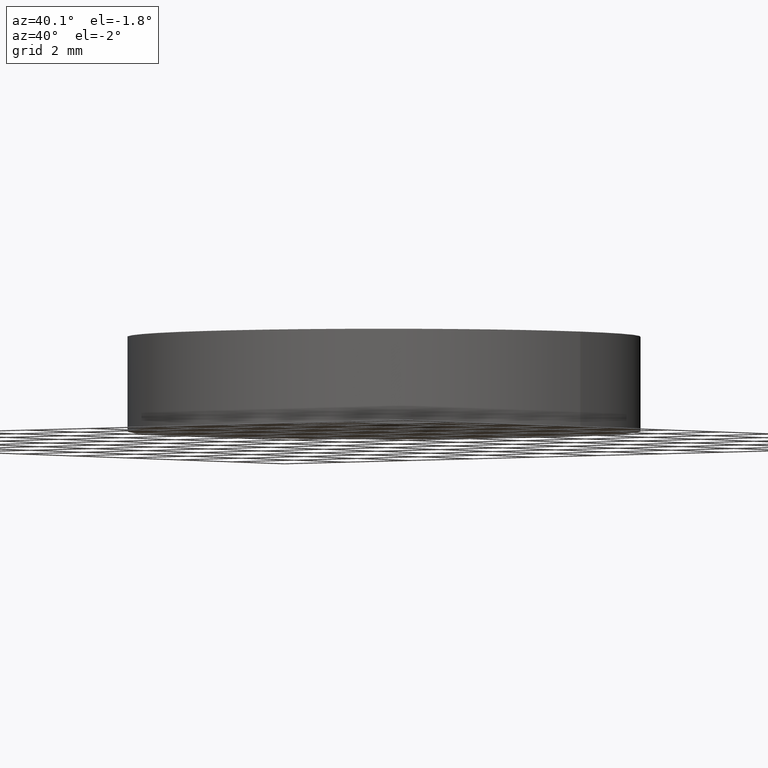
[diagram: clean part render]
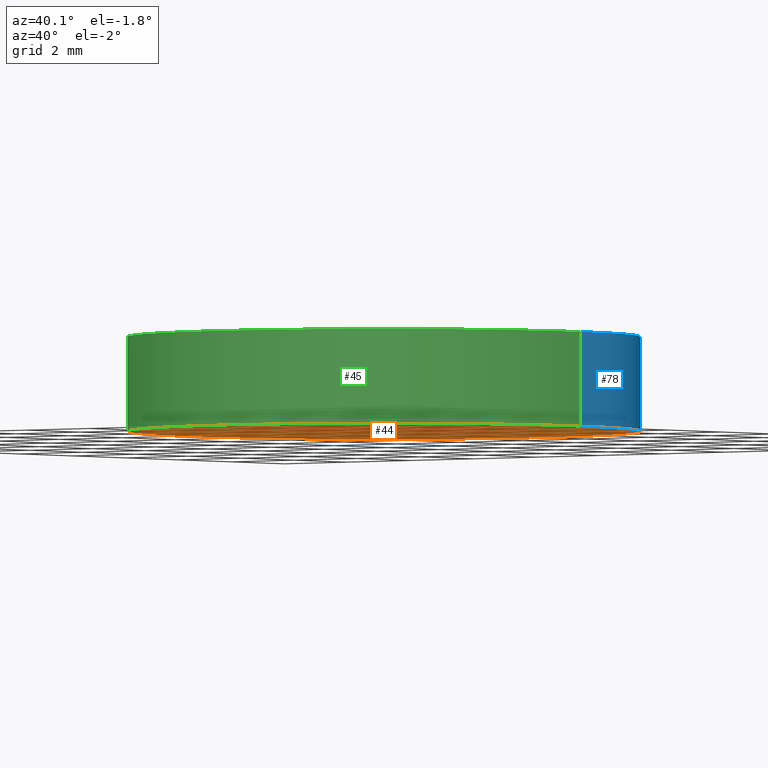
[diagram: same view with three faces highlighted in distinct colors, each labeled with its STEP entity id]
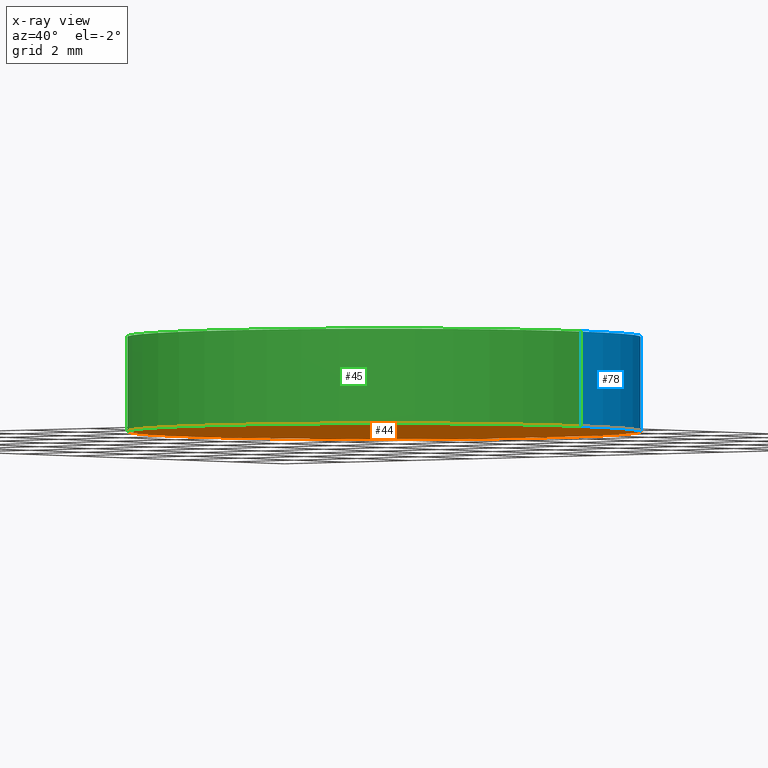
[diagram: x-ray of the same camera — body ghosted, the three highlighted faces saturated]
A machine part, auxiliary view with three faces highlighted in distinct colors.
The next image is the same camera in x-ray (body ghosted, the three faces saturated) — at least one of them is partly hidden behind the body in this view.
Their STEP definitions:

[orange] entity #44 — the highlighted planar face has unit normal (0, 0, 1).
#6 = DIRECTION ( 'NONE',  ( 1.000000000000000000, 0.0000000000000000000, 0.0000000000000000000 ) ) ;
#17 = CARTESIAN_POINT ( 'NONE',  ( 50.62396788794254100, 30.78162091726329700, 0.0000000000000000000 ) ) ;
#20 = EDGE_CURVE ( 'NONE', #93, #112, #40, .T. ) ;
#25 = PLANE ( 'NONE',  #28 ) ;
#26 = CARTESIAN_POINT ( 'NONE',  ( 44.37396788794254800, 30.78162091726329700, 0.0000000000000000000 ) ) ;
#28 = AXIS2_PLACEMENT_3D ( 'NONE', #127, #136, #47 ) ;
#32 = AXIS2_PLACEMENT_3D ( 'NONE', #17, #61, #6 ) ;
#38 = AXIS2_PLACEMENT_3D ( 'NONE', #50, #46, #123 ) ;
#40 = CIRCLE ( 'NONE', #32, 6.249999999999998200 ) ;
#44 = ADVANCED_FACE ( 'NONE', ( #135 ), #25, .F. ) ;
#46 = DIRECTION ( 'NONE',  ( 0.0000000000000000000, 0.0000000000000000000, 1.000000000000000000 ) ) ;
#47 = DIRECTION ( 'NONE',  ( 1.000000000000000000, 0.0000000000000000000, -0.0000000000000000000 ) ) ;
#50 = CARTESIAN_POINT ( 'NONE',  ( 50.62396788794254100, 30.78162091726329700, 0.0000000000000000000 ) ) ;
#57 = EDGE_CURVE ( 'NONE', #112, #93, #67, .T. ) ;
#61 = DIRECTION ( 'NONE',  ( 0.0000000000000000000, 0.0000000000000000000, 1.000000000000000000 ) ) ;
#67 = CIRCLE ( 'NONE', #38, 6.249999999999998200 ) ;
#82 = ORIENTED_EDGE ( 'NONE', *, *, #20, .F. ) ;
#93 = VERTEX_POINT ( 'NONE', #26 ) ;
#106 = EDGE_LOOP ( 'NONE', ( #82, #114 ) ) ;
#112 = VERTEX_POINT ( 'NONE', #116 ) ;
#114 = ORIENTED_EDGE ( 'NONE', *, *, #57, .F. ) ;
#116 = CARTESIAN_POINT ( 'NONE',  ( 56.87396788794254100, 30.78162091726329700, 0.0000000000000000000 ) ) ;
#123 = DIRECTION ( 'NONE',  ( 1.000000000000000000, 0.0000000000000000000, 0.0000000000000000000 ) ) ;
#127 = CARTESIAN_POINT ( 'NONE',  ( 50.62396788794254100, 30.78162091726329700, 0.0000000000000000000 ) ) ;
#135 = FACE_OUTER_BOUND ( 'NONE', #106, .T. ) ;
#136 = DIRECTION ( 'NONE',  ( 0.0000000000000000000, 0.0000000000000000000, 1.000000000000000000 ) ) ;

[blue] entity #78 — the highlighted cylindrical surface (partial cylindrical patch) has radius 6.25 mm, axis along (-0, -0, -1).
#2 = LINE ( 'NONE', #33, #39 ) ;
#10 = LINE ( 'NONE', #129, #100 ) ;
#11 = FACE_OUTER_BOUND ( 'NONE', #96, .T. ) ;
#22 = ORIENTED_EDGE ( 'NONE', *, *, #24, .F. ) ;
#23 = ORIENTED_EDGE ( 'NONE', *, *, #57, .T. ) ;
#24 = EDGE_CURVE ( 'NONE', #54, #93, #2, .T. ) ;
#26 = CARTESIAN_POINT ( 'NONE',  ( 44.37396788794254800, 30.78162091726329700, 0.0000000000000000000 ) ) ;
#33 = CARTESIAN_POINT ( 'NONE',  ( 44.37396788794254800, 30.78162091726329700, 2.299999999999999800 ) ) ;
#38 = AXIS2_PLACEMENT_3D ( 'NONE', #50, #46, #123 ) ;
#39 = VECTOR ( 'NONE', #98, 1000.000000000000000 ) ;
#42 = CIRCLE ( 'NONE', #130, 6.249999999999998200 ) ;
#46 = DIRECTION ( 'NONE',  ( 0.0000000000000000000, 0.0000000000000000000, 1.000000000000000000 ) ) ;
#50 = CARTESIAN_POINT ( 'NONE',  ( 50.62396788794254100, 30.78162091726329700, 0.0000000000000000000 ) ) ;
#51 = DIRECTION ( 'NONE',  ( -0.0000000000000000000, -0.0000000000000000000, -1.000000000000000000 ) ) ;
#54 = VERTEX_POINT ( 'NONE', #65 ) ;
#55 = CARTESIAN_POINT ( 'NONE',  ( 50.62396788794254100, 30.78162091726329700, 2.299999999999999800 ) ) ;
#57 = EDGE_CURVE ( 'NONE', #112, #93, #67, .T. ) ;
#63 = DIRECTION ( 'NONE',  ( -1.000000000000000000, 0.0000000000000000000, 0.0000000000000000000 ) ) ;
#65 = CARTESIAN_POINT ( 'NONE',  ( 44.37396788794254800, 30.78162091726329700, 2.299999999999999800 ) ) ;
#67 = CIRCLE ( 'NONE', #38, 6.249999999999998200 ) ;
#70 = DIRECTION ( 'NONE',  ( 1.000000000000000000, 0.0000000000000000000, 0.0000000000000000000 ) ) ;
#78 = ADVANCED_FACE ( 'NONE', ( #11 ), #86, .T. ) ;
#86 = CYLINDRICAL_SURFACE ( 'NONE', #105, 6.249999999999998200 ) ;
#89 = VERTEX_POINT ( 'NONE', #126 ) ;
#93 = VERTEX_POINT ( 'NONE', #26 ) ;
#96 = EDGE_LOOP ( 'NONE', ( #104, #108, #23, #22 ) ) ;
#98 = DIRECTION ( 'NONE',  ( -0.0000000000000000000, -0.0000000000000000000, -1.000000000000000000 ) ) ;
#100 = VECTOR ( 'NONE', #51, 1000.000000000000000 ) ;
#102 = DIRECTION ( 'NONE',  ( 0.0000000000000000000, 0.0000000000000000000, 1.000000000000000000 ) ) ;
#104 = ORIENTED_EDGE ( 'NONE', *, *, #138, .F. ) ;
#105 = AXIS2_PLACEMENT_3D ( 'NONE', #107, #125, #63 ) ;
#107 = CARTESIAN_POINT ( 'NONE',  ( 50.62396788794254100, 30.78162091726329700, 2.299999999999999800 ) ) ;
#108 = ORIENTED_EDGE ( 'NONE', *, *, #113, .T. ) ;
#112 = VERTEX_POINT ( 'NONE', #116 ) ;
#113 = EDGE_CURVE ( 'NONE', #89, #112, #10, .T. ) ;
#116 = CARTESIAN_POINT ( 'NONE',  ( 56.87396788794254100, 30.78162091726329700, 0.0000000000000000000 ) ) ;
#123 = DIRECTION ( 'NONE',  ( 1.000000000000000000, 0.0000000000000000000, 0.0000000000000000000 ) ) ;
#125 = DIRECTION ( 'NONE',  ( -0.0000000000000000000, -0.0000000000000000000, -1.000000000000000000 ) ) ;
#126 = CARTESIAN_POINT ( 'NONE',  ( 56.87396788794254100, 30.78162091726329700, 2.299999999999999800 ) ) ;
#129 = CARTESIAN_POINT ( 'NONE',  ( 56.87396788794254100, 30.78162091726329700, 2.299999999999999800 ) ) ;
#130 = AXIS2_PLACEMENT_3D ( 'NONE', #55, #102, #70 ) ;
#138 = EDGE_CURVE ( 'NONE', #89, #54, #42, .T. ) ;

[green] entity #45 — the highlighted cylindrical surface (partial cylindrical patch) has radius 6.25 mm, axis along (-0, -0, -1).
#2 = LINE ( 'NONE', #33, #39 ) ;
#4 = CIRCLE ( 'NONE', #9, 6.249999999999998200 ) ;
#6 = DIRECTION ( 'NONE',  ( 1.000000000000000000, 0.0000000000000000000, 0.0000000000000000000 ) ) ;
#9 = AXIS2_PLACEMENT_3D ( 'NONE', #124, #99, #48 ) ;
#10 = LINE ( 'NONE', #129, #100 ) ;
#17 = CARTESIAN_POINT ( 'NONE',  ( 50.62396788794254100, 30.78162091726329700, 0.0000000000000000000 ) ) ;
#19 = ORIENTED_EDGE ( 'NONE', *, *, #113, .F. ) ;
#20 = EDGE_CURVE ( 'NONE', #93, #112, #40, .T. ) ;
#24 = EDGE_CURVE ( 'NONE', #54, #93, #2, .T. ) ;
#26 = CARTESIAN_POINT ( 'NONE',  ( 44.37396788794254800, 30.78162091726329700, 0.0000000000000000000 ) ) ;
#30 = ORIENTED_EDGE ( 'NONE', *, *, #24, .T. ) ;
#31 = AXIS2_PLACEMENT_3D ( 'NONE', #117, #87, #80 ) ;
#32 = AXIS2_PLACEMENT_3D ( 'NONE', #17, #61, #6 ) ;
#33 = CARTESIAN_POINT ( 'NONE',  ( 44.37396788794254800, 30.78162091726329700, 2.299999999999999800 ) ) ;
#34 = FACE_OUTER_BOUND ( 'NONE', #122, .T. ) ;
#39 = VECTOR ( 'NONE', #98, 1000.000000000000000 ) ;
#40 = CIRCLE ( 'NONE', #32, 6.249999999999998200 ) ;
#45 = ADVANCED_FACE ( 'NONE', ( #34 ), #111, .T. ) ;
#48 = DIRECTION ( 'NONE',  ( 1.000000000000000000, 0.0000000000000000000, 0.0000000000000000000 ) ) ;
#51 = DIRECTION ( 'NONE',  ( -0.0000000000000000000, -0.0000000000000000000, -1.000000000000000000 ) ) ;
#54 = VERTEX_POINT ( 'NONE', #65 ) ;
#61 = DIRECTION ( 'NONE',  ( 0.0000000000000000000, 0.0000000000000000000, 1.000000000000000000 ) ) ;
#65 = CARTESIAN_POINT ( 'NONE',  ( 44.37396788794254800, 30.78162091726329700, 2.299999999999999800 ) ) ;
#72 = EDGE_CURVE ( 'NONE', #54, #89, #4, .T. ) ;
#79 = ORIENTED_EDGE ( 'NONE', *, *, #72, .F. ) ;
#80 = DIRECTION ( 'NONE',  ( -1.000000000000000000, 0.0000000000000000000, 0.0000000000000000000 ) ) ;
#84 = ORIENTED_EDGE ( 'NONE', *, *, #20, .T. ) ;
#87 = DIRECTION ( 'NONE',  ( -0.0000000000000000000, -0.0000000000000000000, -1.000000000000000000 ) ) ;
#89 = VERTEX_POINT ( 'NONE', #126 ) ;
#93 = VERTEX_POINT ( 'NONE', #26 ) ;
#98 = DIRECTION ( 'NONE',  ( -0.0000000000000000000, -0.0000000000000000000, -1.000000000000000000 ) ) ;
#99 = DIRECTION ( 'NONE',  ( 0.0000000000000000000, 0.0000000000000000000, 1.000000000000000000 ) ) ;
#100 = VECTOR ( 'NONE', #51, 1000.000000000000000 ) ;
#111 = CYLINDRICAL_SURFACE ( 'NONE', #31, 6.249999999999998200 ) ;
#112 = VERTEX_POINT ( 'NONE', #116 ) ;
#113 = EDGE_CURVE ( 'NONE', #89, #112, #10, .T. ) ;
#116 = CARTESIAN_POINT ( 'NONE',  ( 56.87396788794254100, 30.78162091726329700, 0.0000000000000000000 ) ) ;
#117 = CARTESIAN_POINT ( 'NONE',  ( 50.62396788794254100, 30.78162091726329700, 2.299999999999999800 ) ) ;
#122 = EDGE_LOOP ( 'NONE', ( #19, #79, #30, #84 ) ) ;
#124 = CARTESIAN_POINT ( 'NONE',  ( 50.62396788794254100, 30.78162091726329700, 2.299999999999999800 ) ) ;
#126 = CARTESIAN_POINT ( 'NONE',  ( 56.87396788794254100, 30.78162091726329700, 2.299999999999999800 ) ) ;
#129 = CARTESIAN_POINT ( 'NONE',  ( 56.87396788794254100, 30.78162091726329700, 2.299999999999999800 ) ) ;